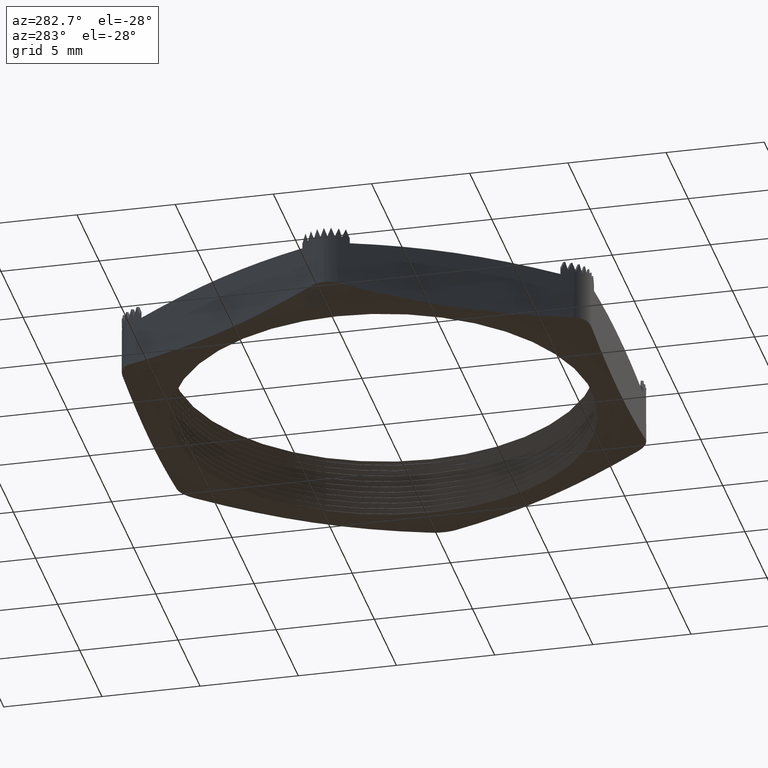
[diagram: clean part render]
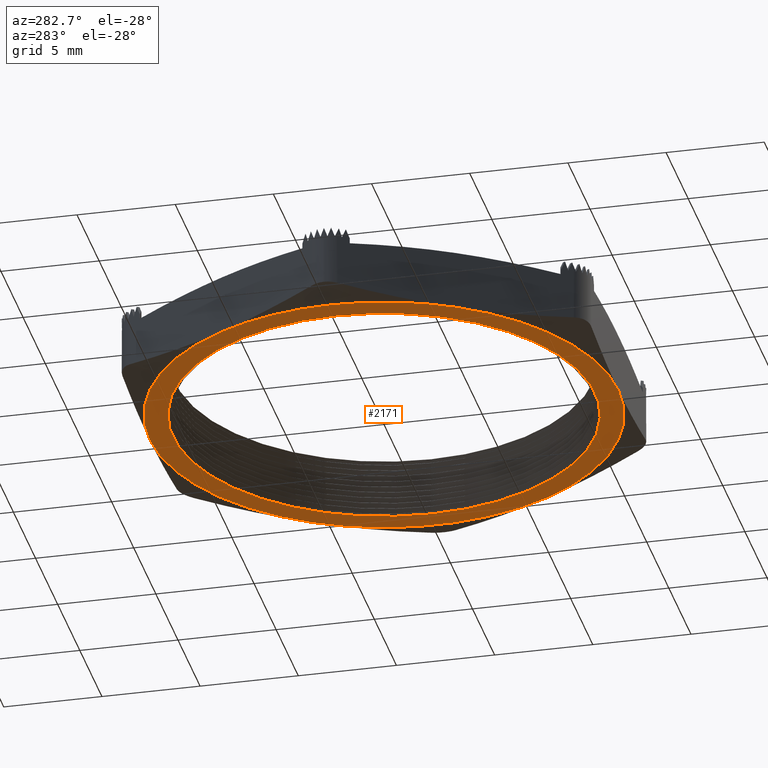
[diagram: same view with one face highlighted and labeled with its STEP entity id]
A machine part, auxiliary view. The second image highlights one B-rep face of the part: STEP entity #2171.
In plain terms, the highlighted planar face has unit normal (0, 0, -1).
Its self-contained STEP definition (entity closure, byte-faithful):
#53 = VERTEX_POINT ( 'NONE', #2421 ) ;
#111 = VERTEX_POINT ( 'NONE', #2545 ) ;
#183 = ORIENTED_EDGE ( 'NONE', *, *, #184, .T. ) ;
#184 = EDGE_CURVE ( 'NONE', #2239, #2281, #2706, .T. ) ;
#185 = ORIENTED_EDGE ( 'NONE', *, *, #186, .T. ) ;
#186 = EDGE_CURVE ( 'NONE', #2281, #2321, #2701, .T. ) ;
#196 = ORIENTED_EDGE ( 'NONE', *, *, #197, .T. ) ;
#197 = EDGE_CURVE ( 'NONE', #1941, #1940, #2743, .T. ) ;
#1918 = EDGE_CURVE ( 'NONE', #1919, #1920, #5544, .T. ) ;
#1919 = VERTEX_POINT ( 'NONE', #5540 ) ;
#1920 = VERTEX_POINT ( 'NONE', #5539 ) ;
#1939 = EDGE_CURVE ( 'NONE', #1940, #1941, #5561, .T. ) ;
#1940 = VERTEX_POINT ( 'NONE', #5617 ) ;
#1941 = VERTEX_POINT ( 'NONE', #5616 ) ;
#2169 = EDGE_LOOP ( 'NONE', ( #196, #2193 ) ) ;
#2171 = ADVANCED_FACE ( 'NONE', ( #6042, #6041 ), #6035, .T. ) ;
#2183 = EDGE_CURVE ( 'NONE', #53, #2239, #6052, .T. ) ;
#2184 = EDGE_CURVE ( 'NONE', #111, #53, #6099, .T. ) ;
#2185 = ORIENTED_EDGE ( 'NONE', *, *, #2183, .T. ) ;
#2186 = ORIENTED_EDGE ( 'NONE', *, *, #2184, .T. ) ;
#2187 = EDGE_CURVE ( 'NONE', #1920, #111, #6094, .T. ) ;
#2188 = ORIENTED_EDGE ( 'NONE', *, *, #1918, .T. ) ;
#2189 = ORIENTED_EDGE ( 'NONE', *, *, #2192, .T. ) ;
#2190 = ORIENTED_EDGE ( 'NONE', *, *, #2187, .T. ) ;
#2191 = EDGE_LOOP ( 'NONE', ( #2189, #2188, #2190, #2186, #2185, #183, #185 ) ) ;
#2192 = EDGE_CURVE ( 'NONE', #2321, #1919, #6089, .T. ) ;
#2193 = ORIENTED_EDGE ( 'NONE', *, *, #1939, .T. ) ;
#2239 = VERTEX_POINT ( 'NONE', #6193 ) ;
#2281 = VERTEX_POINT ( 'NONE', #6258 ) ;
#2321 = VERTEX_POINT ( 'NONE', #6357 ) ;
#2421 = CARTESIAN_POINT ( 'NONE',  ( 0.4070319397786862900, 0.2349999999999999900, 0.0000000000000000000 ) ) ;
#2545 = CARTESIAN_POINT ( 'NONE',  ( 0.0000000000000000000, 0.4700000000000000300, 0.0000000000000000000 ) ) ;
#2697 = DIRECTION ( 'NONE',  ( -1.000000000000000000, 0.0000000000000000000, 0.0000000000000000000 ) ) ;
#2698 = DIRECTION ( 'NONE',  ( 0.0000000000000000000, 0.0000000000000000000, -1.000000000000000000 ) ) ;
#2699 = CARTESIAN_POINT ( 'NONE',  ( 0.0000000000000000000, 0.0000000000000000000, 0.0000000000000000000 ) ) ;
#2700 = AXIS2_PLACEMENT_3D ( 'NONE', #2699, #2698, #2697 ) ;
#2701 = CIRCLE ( 'NONE', #2700, 0.4700000000000002000 ) ;
#2702 = DIRECTION ( 'NONE',  ( -1.000000000000000000, 0.0000000000000000000, 0.0000000000000000000 ) ) ;
#2703 = DIRECTION ( 'NONE',  ( 0.0000000000000000000, 0.0000000000000000000, -1.000000000000000000 ) ) ;
#2704 = CARTESIAN_POINT ( 'NONE',  ( 0.0000000000000000000, 0.0000000000000000000, 0.0000000000000000000 ) ) ;
#2705 = AXIS2_PLACEMENT_3D ( 'NONE', #2704, #2703, #2702 ) ;
#2706 = CIRCLE ( 'NONE', #2705, 0.4700000000000002000 ) ;
#2739 = DIRECTION ( 'NONE',  ( -1.000000000000000000, 0.0000000000000000000, 0.0000000000000000000 ) ) ;
#2740 = DIRECTION ( 'NONE',  ( 0.0000000000000000000, 0.0000000000000000000, 1.000000000000000000 ) ) ;
#2741 = CARTESIAN_POINT ( 'NONE',  ( 0.0000000000000000000, 0.0000000000000000000, 0.0000000000000000000 ) ) ;
#2742 = AXIS2_PLACEMENT_3D ( 'NONE', #2741, #2740, #2739 ) ;
#2743 = CIRCLE ( 'NONE', #2742, 0.4230000000000001000 ) ;
#5539 = CARTESIAN_POINT ( 'NONE',  ( -0.4070319397786861800, 0.2350000000000000400, 0.0000000000000000000 ) ) ;
#5540 = CARTESIAN_POINT ( 'NONE',  ( -0.4700000000000002500, 0.0000000000000000000, 0.0000000000000000000 ) ) ;
#5541 = DIRECTION ( 'NONE',  ( -1.000000000000000000, 0.0000000000000000000, 0.0000000000000000000 ) ) ;
#5542 = DIRECTION ( 'NONE',  ( 0.0000000000000000000, 0.0000000000000000000, -1.000000000000000000 ) ) ;
#5543 = AXIS2_PLACEMENT_3D ( 'NONE', #5550, #5542, #5541 ) ;
#5544 = CIRCLE ( 'NONE', #5543, 0.4700000000000002000 ) ;
#5550 = CARTESIAN_POINT ( 'NONE',  ( 0.0000000000000000000, 0.0000000000000000000, 0.0000000000000000000 ) ) ;
#5561 = CIRCLE ( 'NONE', #5620, 0.4230000000000001000 ) ;
#5566 = CARTESIAN_POINT ( 'NONE',  ( 0.0000000000000000000, 0.0000000000000000000, 0.0000000000000000000 ) ) ;
#5616 = CARTESIAN_POINT ( 'NONE',  ( -0.4230000000000001000, 0.0000000000000000000, 3.201384367575308500E-018 ) ) ;
#5617 = CARTESIAN_POINT ( 'NONE',  ( 0.4230000000000001000, 5.180255960393306200E-017, 3.201384367575308500E-018 ) ) ;
#5618 = DIRECTION ( 'NONE',  ( -1.000000000000000000, 0.0000000000000000000, 0.0000000000000000000 ) ) ;
#5619 = DIRECTION ( 'NONE',  ( 0.0000000000000000000, 0.0000000000000000000, 1.000000000000000000 ) ) ;
#5620 = AXIS2_PLACEMENT_3D ( 'NONE', #5566, #5619, #5618 ) ;
#6031 = DIRECTION ( 'NONE',  ( -1.000000000000000000, 0.0000000000000000000, 0.0000000000000000000 ) ) ;
#6032 = DIRECTION ( 'NONE',  ( 0.0000000000000000000, 0.0000000000000000000, -1.000000000000000000 ) ) ;
#6033 = CARTESIAN_POINT ( 'NONE',  ( 1.365923996832131600E-016, 0.9400000000000000600, 0.0000000000000000000 ) ) ;
#6034 = AXIS2_PLACEMENT_3D ( 'NONE', #6033, #6032, #6031 ) ;
#6035 = PLANE ( 'NONE',  #6034 ) ;
#6041 = FACE_OUTER_BOUND ( 'NONE', #2191, .T. ) ;
#6042 = FACE_BOUND ( 'NONE', #2169, .T. ) ;
#6048 = DIRECTION ( 'NONE',  ( -1.000000000000000000, 0.0000000000000000000, 0.0000000000000000000 ) ) ;
#6049 = DIRECTION ( 'NONE',  ( 0.0000000000000000000, 0.0000000000000000000, -1.000000000000000000 ) ) ;
#6050 = CARTESIAN_POINT ( 'NONE',  ( 0.0000000000000000000, 0.0000000000000000000, 0.0000000000000000000 ) ) ;
#6051 = AXIS2_PLACEMENT_3D ( 'NONE', #6050, #6049, #6048 ) ;
#6052 = CIRCLE ( 'NONE', #6051, 0.4700000000000002000 ) ;
#6085 = DIRECTION ( 'NONE',  ( -1.000000000000000000, 0.0000000000000000000, 0.0000000000000000000 ) ) ;
#6086 = DIRECTION ( 'NONE',  ( 0.0000000000000000000, 0.0000000000000000000, -1.000000000000000000 ) ) ;
#6087 = CARTESIAN_POINT ( 'NONE',  ( 0.0000000000000000000, 0.0000000000000000000, 0.0000000000000000000 ) ) ;
#6088 = AXIS2_PLACEMENT_3D ( 'NONE', #6087, #6086, #6085 ) ;
#6089 = CIRCLE ( 'NONE', #6088, 0.4700000000000002000 ) ;
#6090 = DIRECTION ( 'NONE',  ( -1.000000000000000000, 0.0000000000000000000, 0.0000000000000000000 ) ) ;
#6091 = DIRECTION ( 'NONE',  ( 0.0000000000000000000, 0.0000000000000000000, -1.000000000000000000 ) ) ;
#6092 = CARTESIAN_POINT ( 'NONE',  ( 0.0000000000000000000, 0.0000000000000000000, 0.0000000000000000000 ) ) ;
#6093 = AXIS2_PLACEMENT_3D ( 'NONE', #6092, #6091, #6090 ) ;
#6094 = CIRCLE ( 'NONE', #6093, 0.4700000000000002000 ) ;
#6095 = DIRECTION ( 'NONE',  ( -1.000000000000000000, 0.0000000000000000000, 0.0000000000000000000 ) ) ;
#6096 = DIRECTION ( 'NONE',  ( 0.0000000000000000000, 0.0000000000000000000, -1.000000000000000000 ) ) ;
#6097 = CARTESIAN_POINT ( 'NONE',  ( 0.0000000000000000000, 0.0000000000000000000, 0.0000000000000000000 ) ) ;
#6098 = AXIS2_PLACEMENT_3D ( 'NONE', #6097, #6096, #6095 ) ;
#6099 = CIRCLE ( 'NONE', #6098, 0.4700000000000002000 ) ;
#6193 = CARTESIAN_POINT ( 'NONE',  ( 0.4070319397786861800, -0.2349999999999999600, 0.0000000000000000000 ) ) ;
#6258 = CARTESIAN_POINT ( 'NONE',  ( 5.914624404477001400E-017, -0.4699999999999998600, 0.0000000000000000000 ) ) ;
#6357 = CARTESIAN_POINT ( 'NONE',  ( -0.4070319397786864600, -0.2350000000000000100, 0.0000000000000000000 ) ) ;